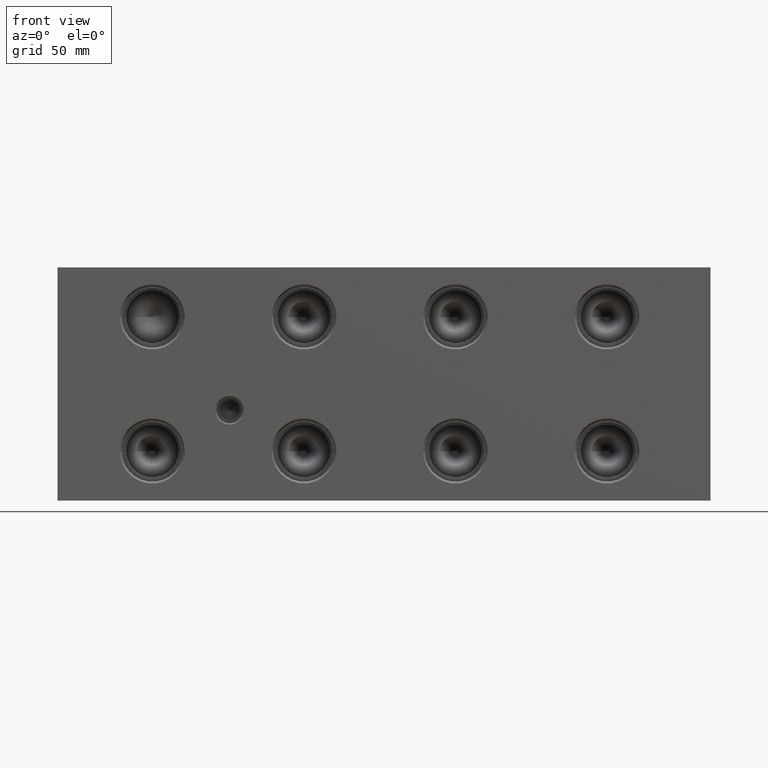
[diagram: clean part render]
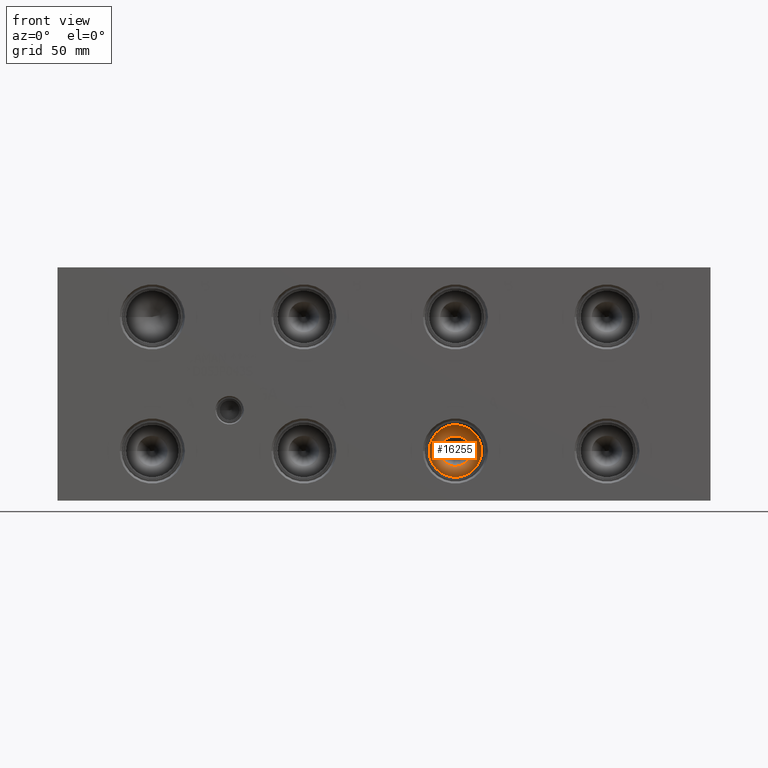
[diagram: same view with one face highlighted and labeled with its STEP entity id]
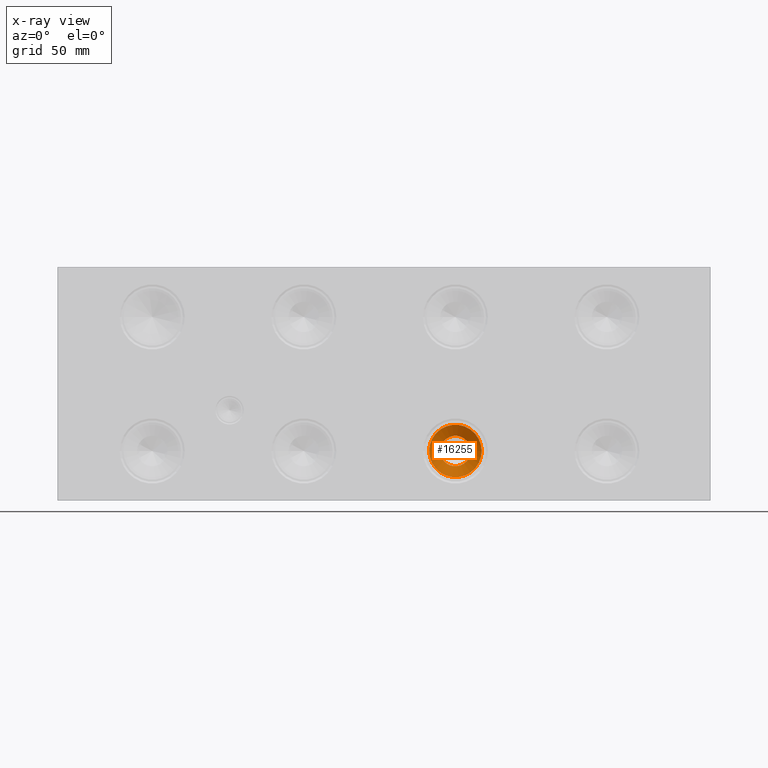
[diagram: x-ray of the same camera — body ghosted, the highlighted face saturated]
A machine part, front view. The second image highlights one B-rep face of the part: STEP entity #16255.
The next image is the same camera in x-ray: the body ghosted, the highlighted face saturated — about 0% of this face is hidden behind the body in this view.
In plain terms, the highlighted conical surface has half-angle 60 deg.
Its self-contained STEP definition (entity closure, byte-faithful):
#169=CONICAL_SURFACE('',#17067,7.14375,1.0471975511966);
#375=CIRCLE('',#17068,14.2875);
#376=CIRCLE('',#17069,8.29239320143379);
#377=CIRCLE('',#17070,14.2875);
#2085=FACE_OUTER_BOUND('',#3033,.T.);
#3033=EDGE_LOOP('',(#13497,#13498,#13499,#13500,#13501));
#4574=LINE('',#27386,#6007);
#6007=VECTOR('',#20043,7.14375);
#7369=VERTEX_POINT('',#27382);
#7370=VERTEX_POINT('',#27383);
#7371=VERTEX_POINT('',#27385);
#9510=EDGE_CURVE('',#7369,#7370,#375,.T.);
#9511=EDGE_CURVE('',#7370,#7371,#4574,.T.);
#9512=EDGE_CURVE('',#7371,#7371,#376,.T.);
#9513=EDGE_CURVE('',#7370,#7369,#377,.T.);
#13497=ORIENTED_EDGE('',*,*,#9510,.T.);
#13498=ORIENTED_EDGE('',*,*,#9511,.T.);
#13499=ORIENTED_EDGE('',*,*,#9512,.F.);
#13500=ORIENTED_EDGE('',*,*,#9511,.F.);
#13501=ORIENTED_EDGE('',*,*,#9513,.T.);
#16255=ADVANCED_FACE('',(#2085),#169,.F.);
#17067=AXIS2_PLACEMENT_3D('',#27381,#20039,#20040);
#17068=AXIS2_PLACEMENT_3D('',#27384,#20041,#20042);
#17069=AXIS2_PLACEMENT_3D('',#27387,#20044,#20045);
#17070=AXIS2_PLACEMENT_3D('',#27388,#20046,#20047);
#20039=DIRECTION('center_axis',(0.,-1.,0.));
#20040=DIRECTION('ref_axis',(1.,0.,0.));
#20041=DIRECTION('center_axis',(0.,-1.,0.));
#20042=DIRECTION('ref_axis',(1.,0.,0.));
#20043=DIRECTION('',(0.866025403784438,0.5,1.06057523872491E-16));
#20044=DIRECTION('center_axis',(0.,-1.,0.));
#20045=DIRECTION('ref_axis',(1.,0.,0.));
#20046=DIRECTION('center_axis',(0.,-1.,0.));
#20047=DIRECTION('ref_axis',(1.,0.,0.));
#27381=CARTESIAN_POINT('Origin',(216.6874,36.7715359855234,27.0002));
#27382=CARTESIAN_POINT('',(230.9749,32.64709,27.0002));
#27383=CARTESIAN_POINT('',(202.3999,32.64709,27.0002));
#27384=CARTESIAN_POINT('Origin',(216.6874,32.64709,27.0002));
#27385=CARTESIAN_POINT('',(208.395006798566,36.1083665239728,27.0002));
#27386=CARTESIAN_POINT('',(209.54365,36.7715359855234,27.0002));
#27387=CARTESIAN_POINT('Origin',(216.6874,36.1083665239728,27.0002));
#27388=CARTESIAN_POINT('Origin',(216.6874,32.64709,27.0002));